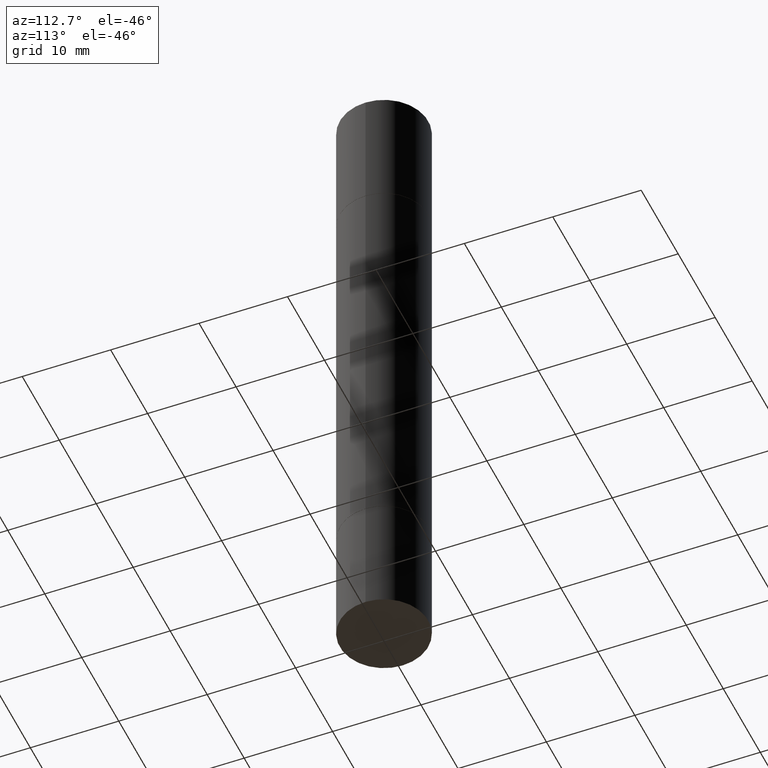
[diagram: clean part render]
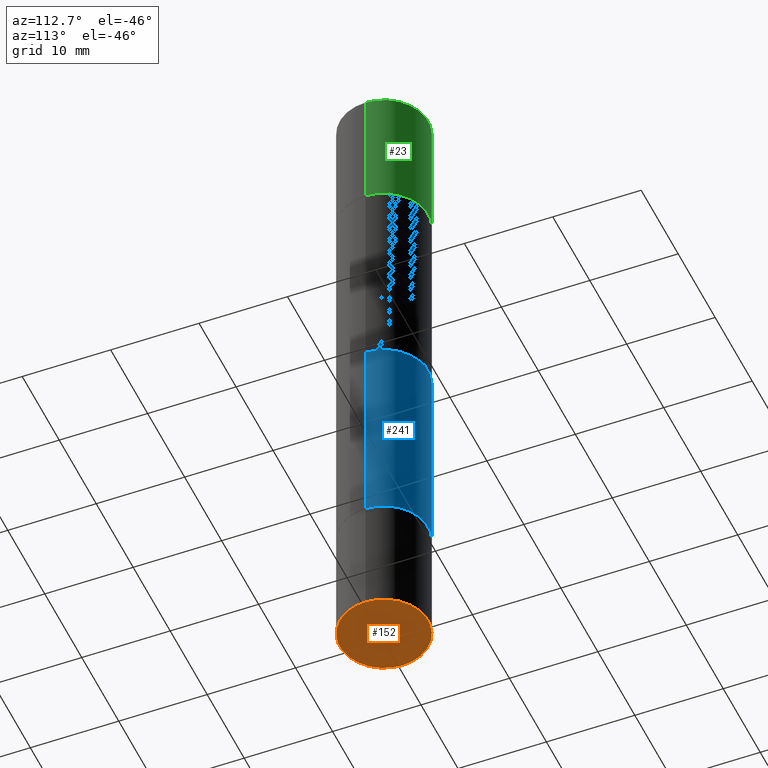
[diagram: same view with three faces highlighted in distinct colors, each labeled with its STEP entity id]
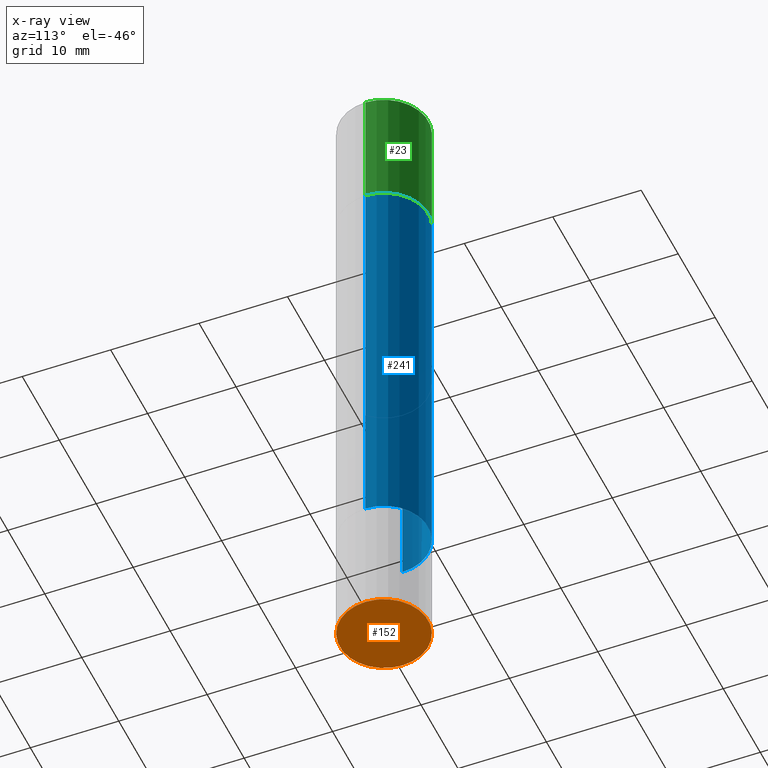
[diagram: x-ray of the same camera — body ghosted, the three highlighted faces saturated]
A machine part, auxiliary view with three faces highlighted in distinct colors.
The next image is the same camera in x-ray (body ghosted, the three faces saturated) — at least one of them is partly hidden behind the body in this view.
Their STEP definitions:

[orange] entity #152 — the highlighted planar face has unit normal (0, -0, -1).
#2 = CARTESIAN_POINT ( 'NONE',  ( 7.220980290903470182E-29, -1.030964609733603853E-14, -2.952799999999999869 ) ) ;
#12 = DIRECTION ( 'NONE',  ( -2.445468806185136597E-29, 3.491481338843145583E-15, 1.000000000000000000 ) ) ;
#31 = AXIS2_PLACEMENT_3D ( 'NONE', #281, #109, #232 ) ;
#55 = CARTESIAN_POINT ( 'NONE',  ( -0.1968500000000000250, -7.948690465007109319E-15, -2.952799999999999869 ) ) ;
#59 = DIRECTION ( 'NONE',  ( 1.000000000000000000, -6.982962677686267499E-15, 0.000000000000000000 ) ) ;
#92 = VERTEX_POINT ( 'NONE', #55 ) ;
#106 = CIRCLE ( 'NONE', #673, 0.1968500000000000250 ) ;
#107 = VERTEX_POINT ( 'NONE', #594 ) ;
#109 = DIRECTION ( 'NONE',  ( 2.438088387897960049E-29, -3.491481338843145188E-15, -1.000000000000000000 ) ) ;
#152 = ADVANCED_FACE ( 'NONE', ( #575 ), #436, .T. ) ;
#185 = EDGE_CURVE ( 'NONE', #107, #92, #655, .T. ) ;
#232 = DIRECTION ( 'NONE',  ( -1.000000000000000000, 6.982962677686265922E-15, -4.876176775795935793E-29 ) ) ;
#281 = CARTESIAN_POINT ( 'NONE',  ( 1.374596203102613789E-15, 0.1968499999999896999, -2.952800000000000313 ) ) ;
#357 = EDGE_CURVE ( 'NONE', #92, #107, #106, .T. ) ;
#388 = EDGE_LOOP ( 'NONE', ( #513, #675 ) ) ;
#436 = PLANE ( 'NONE',  #31 ) ;
#513 = ORIENTED_EDGE ( 'NONE', *, *, #185, .F. ) ;
#529 = DIRECTION ( 'NONE',  ( 1.000000000000000000, -6.982962677686267499E-15, 0.000000000000000000 ) ) ;
#556 = AXIS2_PLACEMENT_3D ( 'NONE', #2, #12, #59 ) ;
#575 = FACE_OUTER_BOUND ( 'NONE', #388, .T. ) ;
#583 = DIRECTION ( 'NONE',  ( -2.445468806185136597E-29, 3.491481338843145583E-15, 1.000000000000000000 ) ) ;
#594 = CARTESIAN_POINT ( 'NONE',  ( 0.1968500000000000250, -1.168424230043858014E-14, -2.952799999999999869 ) ) ;
#630 = CARTESIAN_POINT ( 'NONE',  ( 7.220980290903470182E-29, -1.030964609733603853E-14, -2.952799999999999869 ) ) ;
#655 = CIRCLE ( 'NONE', #556, 0.1968500000000000250 ) ;
#673 = AXIS2_PLACEMENT_3D ( 'NONE', #630, #583, #529 ) ;
#675 = ORIENTED_EDGE ( 'NONE', *, *, #357, .F. ) ;

[blue] entity #241 — the highlighted cylindrical surface (partial cylindrical patch) has radius 5 mm, axis along (-0, -0, -1).
#7 = CIRCLE ( 'NONE', #399, 0.1968500000000000250 ) ;
#65 = CARTESIAN_POINT ( 'NONE',  ( 0.1968500000000000250, -9.756246305129394287E-15, -2.400599999999999401 ) ) ;
#67 = VERTEX_POINT ( 'NONE', #65 ) ;
#78 = DIRECTION ( 'NONE',  ( 2.445468806185136597E-29, 3.492890411551752677E-15, 1.000000000000000000 ) ) ;
#89 = DIRECTION ( 'NONE',  ( -2.445468806185136877E-29, -3.492890411551753071E-15, -1.000000000000000000 ) ) ;
#116 = VERTEX_POINT ( 'NONE', #326 ) ;
#137 = FACE_OUTER_BOUND ( 'NONE', #342, .T. ) ;
#182 = DIRECTION ( 'NONE',  ( -2.445468806185136877E-29, -3.492890411551753071E-15, -1.000000000000000000 ) ) ;
#200 = EDGE_CURVE ( 'NONE', #310, #231, #383, .T. ) ;
#231 = VERTEX_POINT ( 'NONE', #599 ) ;
#241 = ADVANCED_FACE ( 'NONE', ( #137 ), #348, .T. ) ;
#244 = AXIS2_PLACEMENT_3D ( 'NONE', #550, #501, #328 ) ;
#263 = VECTOR ( 'NONE', #89, 39.37007874015748143 ) ;
#280 = ORIENTED_EDGE ( 'NONE', *, *, #368, .F. ) ;
#286 = AXIS2_PLACEMENT_3D ( 'NONE', #543, #78, #546 ) ;
#293 = CARTESIAN_POINT ( 'NONE',  ( 0.1968499999999998307, -1.168632265538556411E-14, -2.952799999999998981 ) ) ;
#310 = VERTEX_POINT ( 'NONE', #378 ) ;
#326 = CARTESIAN_POINT ( 'NONE',  ( 0.1968500000000000250, -3.301289933414429871E-15, -0.5521999999999996911 ) ) ;
#328 = DIRECTION ( 'NONE',  ( 1.000000000000000000, -6.982962677686264344E-15, 0.000000000000000000 ) ) ;
#333 = DIRECTION ( 'NONE',  ( -2.445468806185136597E-29, 3.491481338843145583E-15, 1.000000000000000000 ) ) ;
#342 = EDGE_LOOP ( 'NONE', ( #584, #280, #487, #669 ) ) ;
#348 = CYLINDRICAL_SURFACE ( 'NONE', #244, 0.1968499999999998307 ) ;
#368 = EDGE_CURVE ( 'NONE', #116, #310, #496, .T. ) ;
#378 = CARTESIAN_POINT ( 'NONE',  ( -0.1968500000000000250, -5.762046994505618475E-16, -0.5521999999999996911 ) ) ;
#383 = LINE ( 'NONE', #642, #532 ) ;
#399 = AXIS2_PLACEMENT_3D ( 'NONE', #648, #333, #534 ) ;
#445 = EDGE_CURVE ( 'NONE', #67, #231, #7, .T. ) ;
#487 = ORIENTED_EDGE ( 'NONE', *, *, #650, .T. ) ;
#496 = CIRCLE ( 'NONE', #286, 0.1968500000000000250 ) ;
#501 = DIRECTION ( 'NONE',  ( -2.445468806185136597E-29, -3.492890411551752677E-15, -1.000000000000000000 ) ) ;
#532 = VECTOR ( 'NONE', #182, 39.37007874015748143 ) ;
#534 = DIRECTION ( 'NONE',  ( 1.000000000000000000, -6.982962677686262766E-15, 0.000000000000000000 ) ) ;
#543 = CARTESIAN_POINT ( 'NONE',  ( 5.870592416128037625E-29, -1.926693730311889446E-15, -0.5521999999999996911 ) ) ;
#546 = DIRECTION ( 'NONE',  ( 1.000000000000000000, -6.982962677686267499E-15, 0.000000000000000000 ) ) ;
#550 = CARTESIAN_POINT ( 'NONE',  ( 0.000000000000000000, -1.031172645228302408E-14, -2.952799999999998981 ) ) ;
#553 = LINE ( 'NONE', #293, #263 ) ;
#584 = ORIENTED_EDGE ( 'NONE', *, *, #200, .F. ) ;
#599 = CARTESIAN_POINT ( 'NONE',  ( -0.1968500000000000250, -3.804334017806689102E-15, -2.400599999999999401 ) ) ;
#642 = CARTESIAN_POINT ( 'NONE',  ( -0.1968499999999998307, -8.961237421421701017E-15, -2.952799999999998981 ) ) ;
#648 = CARTESIAN_POINT ( 'NONE',  ( 5.870592416128037625E-29, -8.381650102026854256E-15, -2.400599999999999401 ) ) ;
#650 = EDGE_CURVE ( 'NONE', #116, #67, #553, .T. ) ;
#669 = ORIENTED_EDGE ( 'NONE', *, *, #445, .T. ) ;

[green] entity #23 — the highlighted cylindrical surface (partial cylindrical patch) has radius 5 mm, axis along (-0, -0, -1).
#23 = ADVANCED_FACE ( 'NONE', ( #514 ), #202, .T. ) ;
#37 = DIRECTION ( 'NONE',  ( -2.445468806185136597E-29, -3.492890411551752677E-15, -1.000000000000000000 ) ) ;
#49 = AXIS2_PLACEMENT_3D ( 'NONE', #408, #37, #468 ) ;
#95 = CIRCLE ( 'NONE', #613, 0.1968500000000000250 ) ;
#135 = DIRECTION ( 'NONE',  ( -2.445468806185136877E-29, -3.492890411551753071E-15, -1.000000000000000000 ) ) ;
#190 = CARTESIAN_POINT ( 'NONE',  ( 0.1968500000000000250, -1.168632265538556569E-14, -2.952799999999998981 ) ) ;
#202 = CYLINDRICAL_SURFACE ( 'NONE', #49, 0.1968500000000000250 ) ;
#228 = VERTEX_POINT ( 'NONE', #403 ) ;
#233 = EDGE_CURVE ( 'NONE', #228, #660, #651, .T. ) ;
#255 = EDGE_LOOP ( 'NONE', ( #526, #521, #320, #573 ) ) ;
#266 = EDGE_CURVE ( 'NONE', #228, #560, #95, .T. ) ;
#267 = CARTESIAN_POINT ( 'NONE',  ( -0.1968500000000000250, 3.899287883846532010E-16, -0.5511999999999995792 ) ) ;
#319 = VECTOR ( 'NONE', #135, 39.37007874015748143 ) ;
#320 = ORIENTED_EDGE ( 'NONE', *, *, #233, .T. ) ;
#343 = CARTESIAN_POINT ( 'NONE',  ( 0.1968500000000000250, -3.297797043002877729E-15, -0.5511999999999995792 ) ) ;
#372 = DIRECTION ( 'NONE',  ( 1.000000000000000000, -6.982962677686265922E-15, 0.000000000000000000 ) ) ;
#395 = DIRECTION ( 'NONE',  ( -2.445468806185136877E-29, -3.492890411551753071E-15, -1.000000000000000000 ) ) ;
#403 = CARTESIAN_POINT ( 'NONE',  ( 0.1968500000000000250, -1.372515848155552113E-15, 5.463695987328526437E-16 ) ) ;
#408 = CARTESIAN_POINT ( 'NONE',  ( 0.000000000000000000, -1.031172645228302408E-14, -2.952799999999998981 ) ) ;
#433 = CIRCLE ( 'NONE', #674, 0.1968500000000000250 ) ;
#446 = LINE ( 'NONE', #643, #319 ) ;
#464 = EDGE_CURVE ( 'NONE', #560, #541, #446, .T. ) ;
#465 = DIRECTION ( 'NONE',  ( 2.445468806185136597E-29, 3.492890411551752677E-15, 1.000000000000000000 ) ) ;
#468 = DIRECTION ( 'NONE',  ( 1.000000000000000000, -6.982962677686267499E-15, 0.000000000000000000 ) ) ;
#479 = CARTESIAN_POINT ( 'NONE',  ( -0.1968500000000000250, 3.899287883846529545E-16, 5.463695987328561936E-16 ) ) ;
#509 = CARTESIAN_POINT ( 'NONE',  ( 5.873037884934223228E-29, -1.923200839900336120E-15, -0.5511999999999995792 ) ) ;
#514 = FACE_OUTER_BOUND ( 'NONE', #255, .T. ) ;
#518 = VECTOR ( 'NONE', #395, 39.37007874015748143 ) ;
#520 = CARTESIAN_POINT ( 'NONE',  ( 7.220980290903470182E-29, 2.080354946989631982E-18, 5.463695987328526437E-16 ) ) ;
#521 = ORIENTED_EDGE ( 'NONE', *, *, #266, .F. ) ;
#526 = ORIENTED_EDGE ( 'NONE', *, *, #464, .F. ) ;
#541 = VERTEX_POINT ( 'NONE', #267 ) ;
#560 = VERTEX_POINT ( 'NONE', #479 ) ;
#573 = ORIENTED_EDGE ( 'NONE', *, *, #652, .T. ) ;
#613 = AXIS2_PLACEMENT_3D ( 'NONE', #520, #621, #372 ) ;
#621 = DIRECTION ( 'NONE',  ( 2.445468806185136597E-29, 3.492890411551752677E-15, 1.000000000000000000 ) ) ;
#643 = CARTESIAN_POINT ( 'NONE',  ( -0.1968500000000000250, -8.961237421421697861E-15, -2.952799999999998981 ) ) ;
#651 = LINE ( 'NONE', #190, #518 ) ;
#652 = EDGE_CURVE ( 'NONE', #660, #541, #433, .T. ) ;
#660 = VERTEX_POINT ( 'NONE', #343 ) ;
#663 = DIRECTION ( 'NONE',  ( 1.000000000000000000, -6.982962677686267499E-15, 0.000000000000000000 ) ) ;
#674 = AXIS2_PLACEMENT_3D ( 'NONE', #509, #465, #663 ) ;